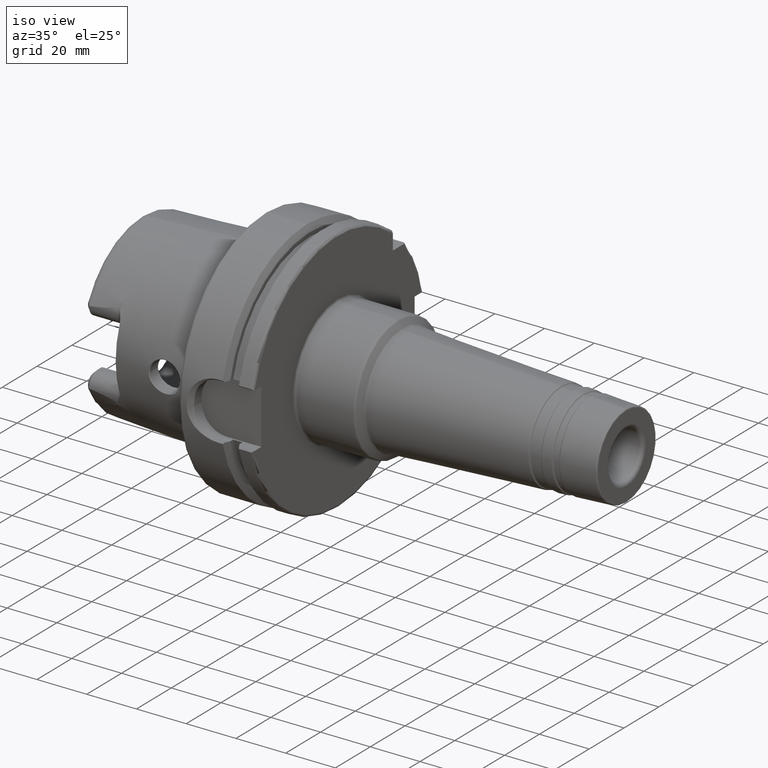
[diagram: clean part render]
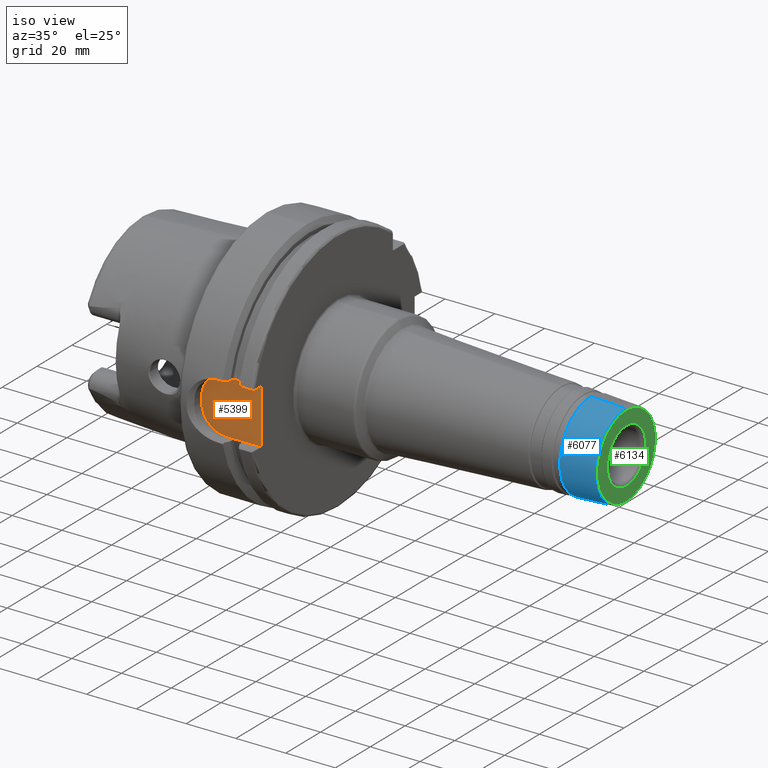
[diagram: same view with three faces highlighted in distinct colors, each labeled with its STEP entity id]
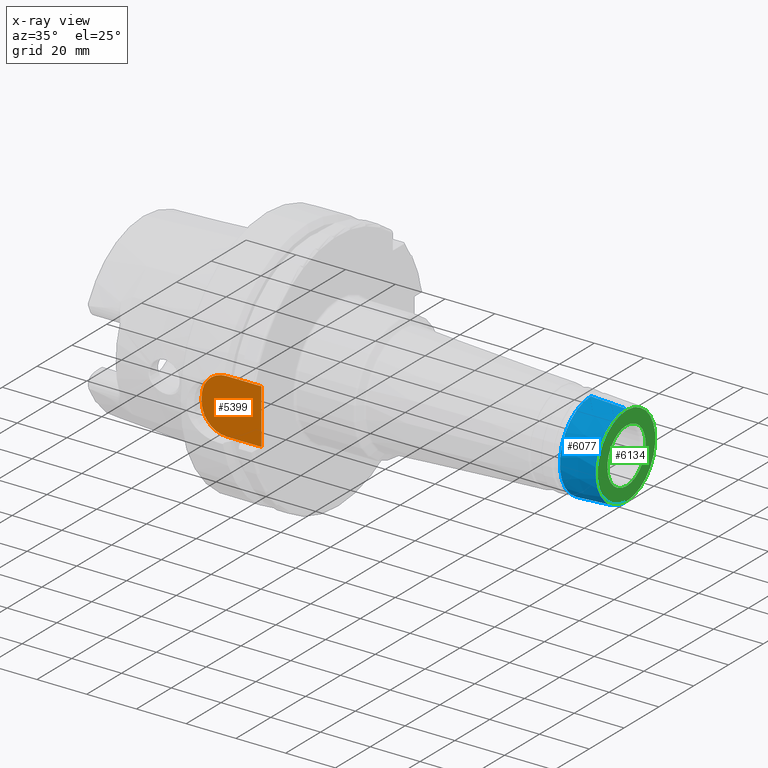
[diagram: x-ray of the same camera — body ghosted, the three highlighted faces saturated]
A machine part, iso view with three faces highlighted in distinct colors.
The next image is the same camera in x-ray (body ghosted, the three faces saturated) — at least one of them is partly hidden behind the body in this view.
Their STEP definitions:

[orange] entity #5399 — the highlighted planar face has unit normal (0, -1, 0).
#1649=DIRECTION('',(0.E0,0.E0,1.E0));
#1650=VECTOR('',#1649,2.2E1);
#1651=CARTESIAN_POINT('',(2.9E1,-4.4E1,-1.1E1));
#1652=LINE('',#1651,#1650);
#1988=CARTESIAN_POINT('',(1.5E1,-4.4E1,1.E0));
#1989=DIRECTION('',(0.E0,-1.E0,0.E0));
#1990=DIRECTION('',(0.E0,0.E0,1.E0));
#1991=AXIS2_PLACEMENT_3D('',#1988,#1989,#1990);
#1993=DIRECTION('',(-1.E0,0.E0,0.E0));
#1994=VECTOR('',#1993,1.4E1);
#1995=CARTESIAN_POINT('',(2.9E1,-4.4E1,1.1E1));
#1996=LINE('',#1995,#1994);
#1997=DIRECTION('',(1.E0,0.E0,0.E0));
#1998=VECTOR('',#1997,1.4E1);
#1999=CARTESIAN_POINT('',(1.5E1,-4.4E1,-1.1E1));
#2000=LINE('',#1999,#1998);
#2001=CARTESIAN_POINT('',(1.5E1,-4.4E1,-1.E0));
#2002=DIRECTION('',(0.E0,-1.E0,0.E0));
#2003=DIRECTION('',(-1.E0,0.E0,0.E0));
#2004=AXIS2_PLACEMENT_3D('',#2001,#2002,#2003);
#2006=DIRECTION('',(0.E0,0.E0,-1.E0));
#2007=VECTOR('',#2006,2.E0);
#2008=CARTESIAN_POINT('',(5.E0,-4.4E1,1.E0));
#2009=LINE('',#2008,#2007);
#2870=CARTESIAN_POINT('',(2.9E1,-4.4E1,-1.1E1));
#2871=CARTESIAN_POINT('',(2.9E1,-4.4E1,1.1E1));
#2872=VERTEX_POINT('',#2870);
#2873=VERTEX_POINT('',#2871);
#2890=CARTESIAN_POINT('',(1.5E1,-4.4E1,1.1E1));
#2891=CARTESIAN_POINT('',(5.E0,-4.4E1,1.E0));
#2892=VERTEX_POINT('',#2890);
#2893=VERTEX_POINT('',#2891);
#2894=CARTESIAN_POINT('',(5.E0,-4.4E1,-1.E0));
#2895=CARTESIAN_POINT('',(1.5E1,-4.4E1,-1.1E1));
#2896=VERTEX_POINT('',#2894);
#2897=VERTEX_POINT('',#2895);
#5383=CARTESIAN_POINT('',(0.E0,-4.4E1,0.E0));
#5384=DIRECTION('',(0.E0,-1.E0,0.E0));
#5385=DIRECTION('',(1.E0,0.E0,0.E0));
#5386=AXIS2_PLACEMENT_3D('',#5383,#5384,#5385);
#5387=PLANE('',#5386);
#5389=ORIENTED_EDGE('',*,*,#5388,.F.);
#5390=ORIENTED_EDGE('',*,*,#5369,.F.);
#5391=ORIENTED_EDGE('',*,*,#5046,.F.);
#5392=ORIENTED_EDGE('',*,*,#5091,.F.);
#5394=ORIENTED_EDGE('',*,*,#5393,.F.);
#5396=ORIENTED_EDGE('',*,*,#5395,.F.);
#5397=EDGE_LOOP('',(#5389,#5390,#5391,#5392,#5394,#5396));
#5398=FACE_OUTER_BOUND('',#5397,.F.);
#5399=ADVANCED_FACE('',(#5398),#5387,.T.);
#1992=CIRCLE('',#1991,1.E1);
#2005=CIRCLE('',#2004,1.E1);
#5046=EDGE_CURVE('',#2872,#2873,#1652,.T.);
#5091=EDGE_CURVE('',#2897,#2872,#2000,.T.);
#5369=EDGE_CURVE('',#2873,#2892,#1996,.T.);
#5388=EDGE_CURVE('',#2892,#2893,#1992,.T.);
#5393=EDGE_CURVE('',#2896,#2897,#2005,.T.);
#5395=EDGE_CURVE('',#2893,#2896,#2009,.T.);

[blue] entity #6077 — the highlighted conical surface has half-angle 3 deg.
#2457=CARTESIAN_POINT('',(1.306342149338E2,0.E0,0.E0));
#2458=DIRECTION('',(-1.E0,0.E0,0.E0));
#2459=DIRECTION('',(0.E0,0.E0,-1.E0));
#2460=AXIS2_PLACEMENT_3D('',#2457,#2458,#2459);
#2462=DIRECTION('',(-9.986295347546E-1,0.E0,-5.233595624295E-2));
#2463=VECTOR('',#2462,1.391101761049E1);
#2464=CARTESIAN_POINT('',(1.445261679781E2,0.E0,-1.702483248402E1));
#2465=LINE('',#2464,#2463);
#2466=DIRECTION('',(-9.986295347546E-1,0.E0,5.233595624295E-2));
#2467=VECTOR('',#2466,1.391101761049E1);
#2468=CARTESIAN_POINT('',(1.445261679781E2,0.E0,1.702483248402E1));
#2469=LINE('',#2468,#2467);
#2470=CARTESIAN_POINT('',(1.445261679781E2,0.E0,0.E0));
#2471=DIRECTION('',(-1.E0,0.E0,0.E0));
#2472=DIRECTION('',(0.E0,0.E0,-1.E0));
#2473=AXIS2_PLACEMENT_3D('',#2470,#2471,#2472);
#3182=CARTESIAN_POINT('',(1.445261679781E2,0.E0,-1.702483248402E1));
#3184=VERTEX_POINT('',#3182);
#3185=CARTESIAN_POINT('',(1.306342149338E2,0.E0,-1.775287889298E1));
#3186=VERTEX_POINT('',#3185);
#3242=CARTESIAN_POINT('',(1.445261679781E2,0.E0,1.702483248402E1));
#3244=VERTEX_POINT('',#3242);
#3245=CARTESIAN_POINT('',(1.306342149338E2,0.E0,1.775287889298E1));
#3246=VERTEX_POINT('',#3245);
#6063=CARTESIAN_POINT('',(1.375801914560E2,0.E0,0.E0));
#6064=DIRECTION('',(-1.E0,0.E0,0.E0));
#6065=DIRECTION('',(0.E0,0.E0,-1.E0));
#6066=AXIS2_PLACEMENT_3D('',#6063,#6064,#6065);
#6067=CONICAL_SURFACE('',#6066,1.738885568850E1,3.E0);
#6069=ORIENTED_EDGE('',*,*,#6068,.T.);
#6070=ORIENTED_EDGE('',*,*,#6058,.T.);
#6072=ORIENTED_EDGE('',*,*,#6071,.F.);
#6074=ORIENTED_EDGE('',*,*,#6073,.F.);
#6075=EDGE_LOOP('',(#6069,#6070,#6072,#6074));
#6076=FACE_OUTER_BOUND('',#6075,.F.);
#6077=ADVANCED_FACE('',(#6076),#6067,.T.);
#2461=CIRCLE('',#2460,1.775287889298E1);
#2474=CIRCLE('',#2473,1.702483248402E1);
#6058=EDGE_CURVE('',#3186,#3246,#2461,.T.);
#6068=EDGE_CURVE('',#3184,#3186,#2465,.T.);
#6071=EDGE_CURVE('',#3244,#3246,#2469,.T.);
#6073=EDGE_CURVE('',#3184,#3244,#2474,.T.);

[green] entity #6134 — the highlighted planar face has unit normal (1, 0, 0).
#2480=CARTESIAN_POINT('',(1.45E2,0.E0,0.E0));
#2481=DIRECTION('',(1.E0,0.E0,0.E0));
#2482=DIRECTION('',(0.E0,0.E0,-1.E0));
#2483=AXIS2_PLACEMENT_3D('',#2480,#2481,#2482);
#2495=CARTESIAN_POINT('',(1.45E2,0.E0,0.E0));
#2496=DIRECTION('',(-1.E0,0.E0,0.E0));
#2497=DIRECTION('',(0.E0,0.E0,-1.E0));
#2498=AXIS2_PLACEMENT_3D('',#2495,#2496,#2497);
#2500=CARTESIAN_POINT('',(1.45E2,0.E0,0.E0));
#2501=DIRECTION('',(-1.E0,0.E0,0.E0));
#2502=DIRECTION('',(0.E0,0.E0,-1.E0));
#2503=AXIS2_PLACEMENT_3D('',#2500,#2501,#2502);
#2505=CARTESIAN_POINT('',(1.45E2,0.E0,0.E0));
#2506=DIRECTION('',(1.E0,0.E0,0.E0));
#2507=DIRECTION('',(0.E0,0.E0,-1.E0));
#2508=AXIS2_PLACEMENT_3D('',#2505,#2506,#2507);
#3179=CARTESIAN_POINT('',(1.45E2,0.E0,-1.1025E1));
#3180=VERTEX_POINT('',#3179);
#3181=CARTESIAN_POINT('',(1.45E2,0.E0,-1.652551771664E1));
#3183=VERTEX_POINT('',#3181);
#3239=CARTESIAN_POINT('',(1.45E2,0.E0,1.1025E1));
#3240=VERTEX_POINT('',#3239);
#3241=CARTESIAN_POINT('',(1.45E2,0.E0,1.652551771664E1));
#3243=VERTEX_POINT('',#3241);
#6119=CARTESIAN_POINT('',(1.45E2,0.E0,0.E0));
#6120=DIRECTION('',(1.E0,0.E0,0.E0));
#6121=DIRECTION('',(0.E0,0.E0,1.E0));
#6122=AXIS2_PLACEMENT_3D('',#6119,#6120,#6121);
#6123=PLANE('',#6122);
#6124=ORIENTED_EDGE('',*,*,#6098,.F.);
#6125=ORIENTED_EDGE('',*,*,#6114,.T.);
#6126=EDGE_LOOP('',(#6124,#6125));
#6127=FACE_OUTER_BOUND('',#6126,.F.);
#6129=ORIENTED_EDGE('',*,*,#6128,.F.);
#6131=ORIENTED_EDGE('',*,*,#6130,.T.);
#6132=EDGE_LOOP('',(#6129,#6131));
#6133=FACE_BOUND('',#6132,.F.);
#6134=ADVANCED_FACE('',(#6127,#6133),#6123,.T.);
#2484=CIRCLE('',#2483,1.652551771664E1);
#2499=CIRCLE('',#2498,1.652551771664E1);
#2504=CIRCLE('',#2503,1.1025E1);
#2509=CIRCLE('',#2508,1.1025E1);
#6098=EDGE_CURVE('',#3183,#3243,#2484,.T.);
#6114=EDGE_CURVE('',#3183,#3243,#2499,.T.);
#6128=EDGE_CURVE('',#3180,#3240,#2504,.T.);
#6130=EDGE_CURVE('',#3180,#3240,#2509,.T.);